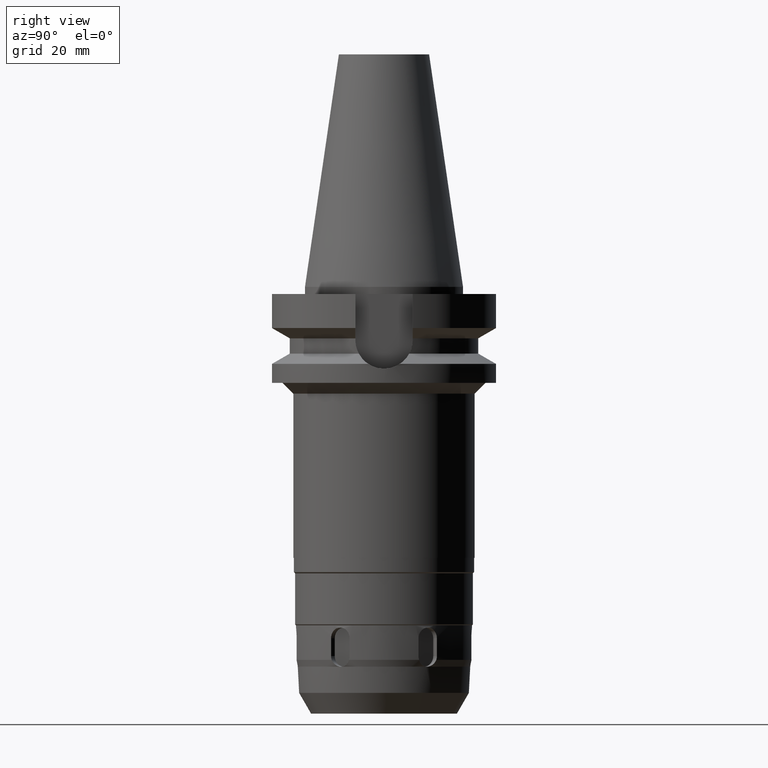
[diagram: clean part render]
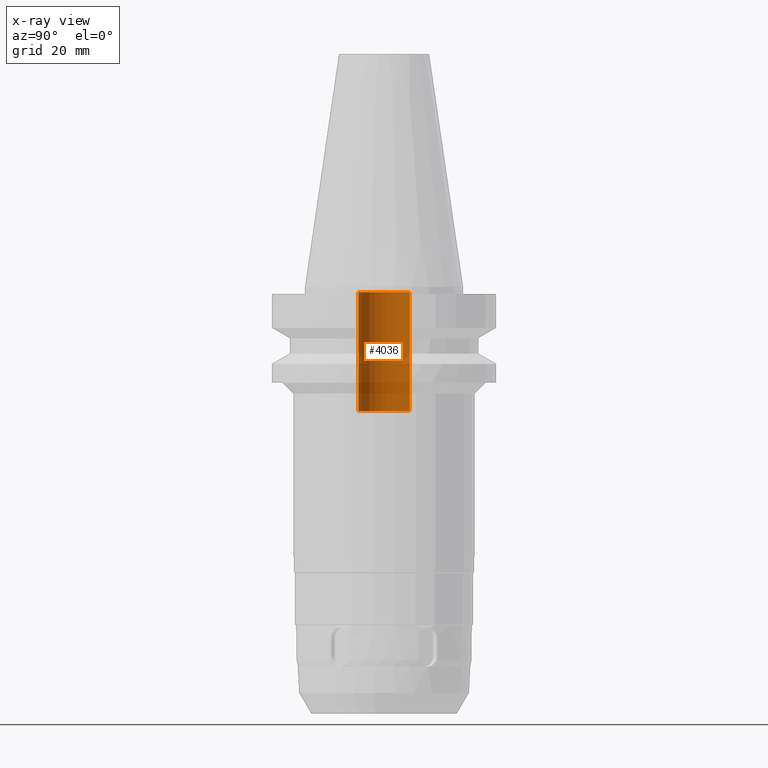
[diagram: x-ray — body ghosted, one internal face saturated and labeled with its STEP entity id]
A machine part, right view, then the same camera in x-ray: the body is ghosted and one INTERNAL B-rep face — a face not visible from any outside direction — is saturated and labeled: STEP entity #4036.
In plain terms, the highlighted cylindrical surface (edge-blend (fillet) strip) has radius 7.25 mm, axis along (0, 0, -1).
Its self-contained STEP definition (entity closure, byte-faithful):
#2067=CARTESIAN_POINT('',(0.E0,2.139090564071E-14,-3.5E1));
#2068=DIRECTION('',(0.E0,0.E0,-1.E0));
#2069=DIRECTION('',(0.E0,-1.E0,0.E0));
#2070=AXIS2_PLACEMENT_3D('',#2067,#2068,#2069);
#2083=DIRECTION('',(0.E0,0.E0,1.E0));
#2084=VECTOR('',#2083,3.35E1);
#2085=CARTESIAN_POINT('',(0.E0,-7.25E0,-3.5E1));
#2086=LINE('',#2085,#2084);
#2090=DIRECTION('',(0.E0,0.E0,1.E0));
#2091=VECTOR('',#2090,3.35E1);
#2092=CARTESIAN_POINT('',(0.E0,7.25E0,-3.5E1));
#2093=LINE('',#2092,#2091);
#2105=CARTESIAN_POINT('',(0.E0,2.139090564071E-14,-1.5E0));
#2106=DIRECTION('',(0.E0,0.E0,1.E0));
#2107=DIRECTION('',(0.E0,1.E0,0.E0));
#2108=AXIS2_PLACEMENT_3D('',#2105,#2106,#2107);
#2315=CARTESIAN_POINT('',(0.E0,-7.25E0,-1.5E0));
#2316=CARTESIAN_POINT('',(0.E0,7.25E0,-1.5E0));
#2317=VERTEX_POINT('',#2315);
#2318=VERTEX_POINT('',#2316);
#2319=CARTESIAN_POINT('',(0.E0,7.25E0,-3.5E1));
#2320=VERTEX_POINT('',#2319);
#2321=CARTESIAN_POINT('',(0.E0,-7.25E0,-3.5E1));
#2322=VERTEX_POINT('',#2321);
#4022=CARTESIAN_POINT('',(0.E0,2.139090564071E-14,7.467E1));
#4023=DIRECTION('',(0.E0,0.E0,-1.E0));
#4024=DIRECTION('',(0.E0,-1.E0,0.E0));
#4025=AXIS2_PLACEMENT_3D('',#4022,#4023,#4024);
#4026=CYLINDRICAL_SURFACE('',#4025,7.25E0);
#4028=ORIENTED_EDGE('',*,*,#4027,.F.);
#4029=ORIENTED_EDGE('',*,*,#4015,.F.);
#4031=ORIENTED_EDGE('',*,*,#4030,.T.);
#4033=ORIENTED_EDGE('',*,*,#4032,.F.);
#4034=EDGE_LOOP('',(#4028,#4029,#4031,#4033));
#4035=FACE_OUTER_BOUND('',#4034,.F.);
#2071=CIRCLE('',#2070,7.25E0);
#2109=CIRCLE('',#2108,7.25E0);
#4015=EDGE_CURVE('',#2322,#2320,#2071,.T.);
#4027=EDGE_CURVE('',#2320,#2318,#2093,.T.);
#4030=EDGE_CURVE('',#2322,#2317,#2086,.T.);
#4032=EDGE_CURVE('',#2318,#2317,#2109,.T.);
#4036=ADVANCED_FACE('',(#4035),#4026,.F.);